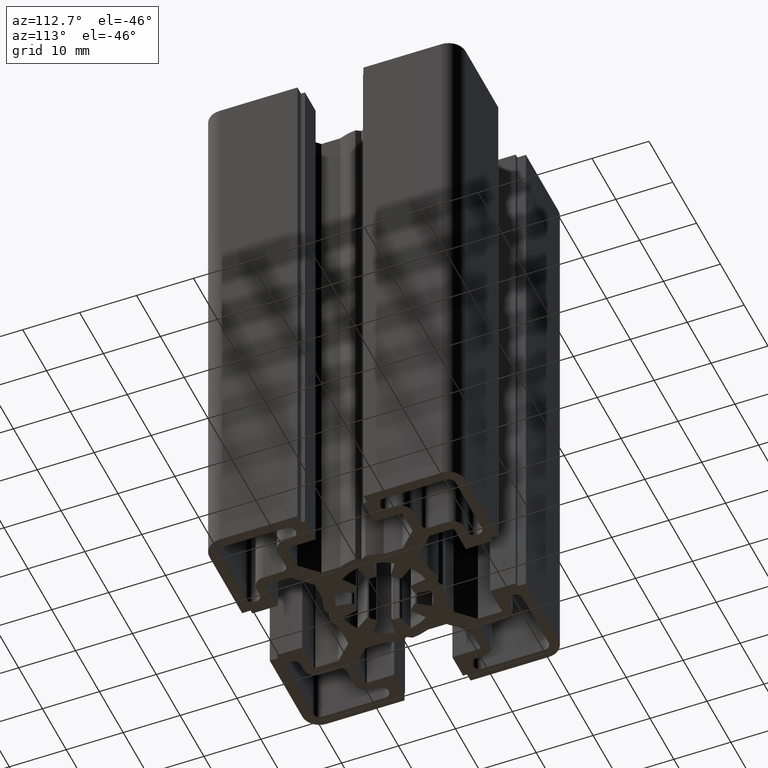
[diagram: clean part render]
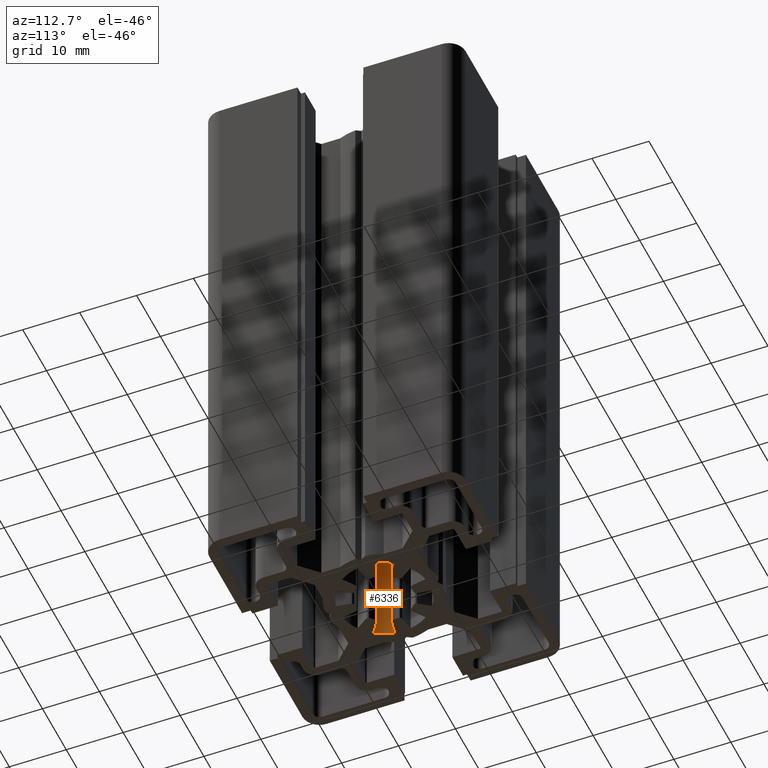
[diagram: same view with one face highlighted and labeled with its STEP entity id]
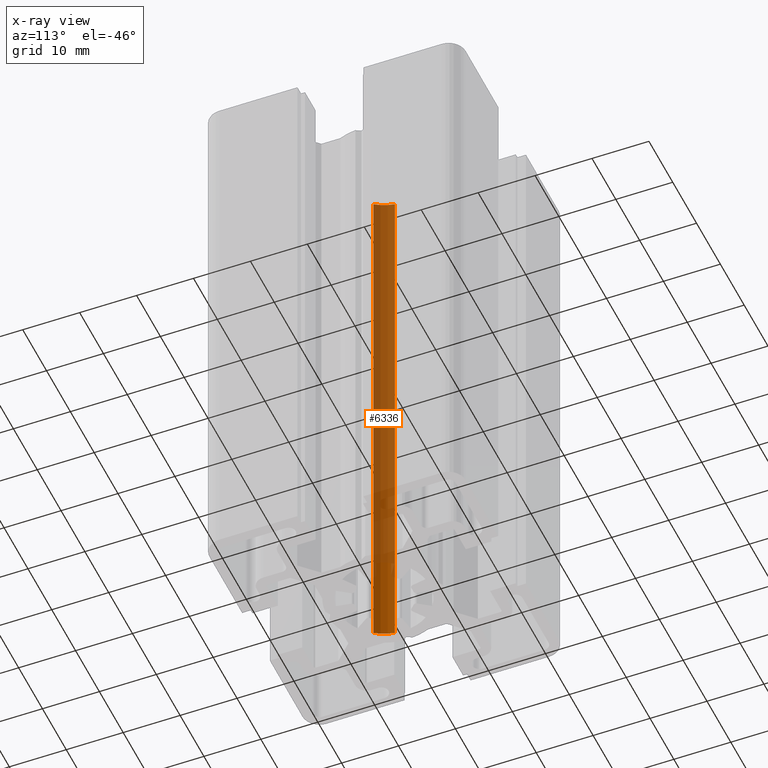
[diagram: x-ray of the same camera — body ghosted, the highlighted face saturated]
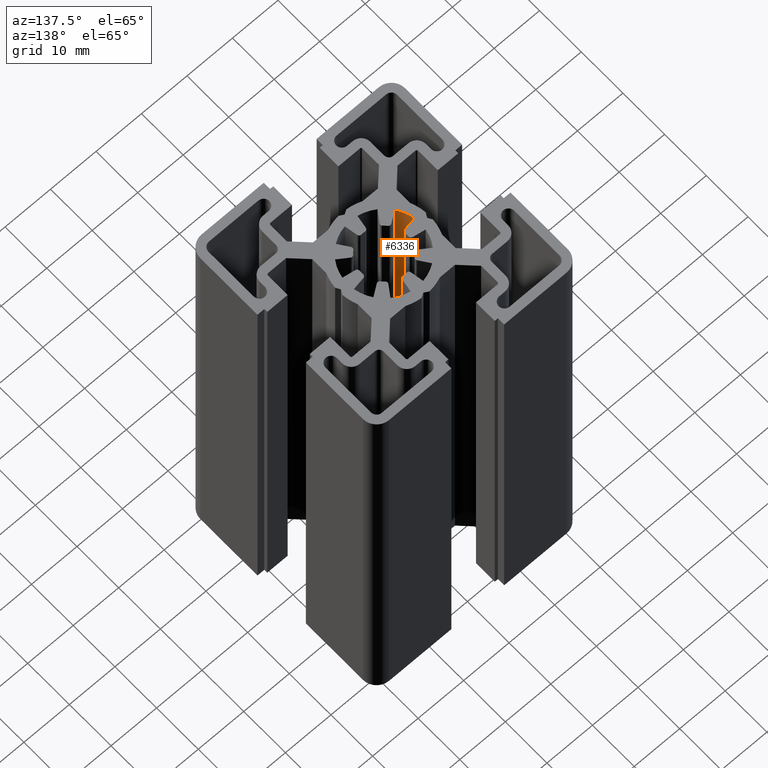
[diagram: same view with one face highlighted and labeled with its STEP entity id]
A machine part, auxiliary view. The second image highlights one B-rep face of the part: STEP entity #6336.
The next image is the same camera in x-ray: the body ghosted, the highlighted face saturated — about 85% of this face is hidden behind the body in this view.
A second angle (auxiliary view) of the same face is appended — the face is thin or edge-on in the first view.
In plain terms, the highlighted cylindrical surface (partial cylindrical patch) has radius 8 mm, axis along (-0, -0, -1).
Its self-contained STEP definition (entity closure, byte-faithful):
#1335 = VERTEX_POINT ( 'NONE', #3887 ) ;
#1382 = VERTEX_POINT ( 'NONE', #3985 ) ;
#1388 = EDGE_CURVE ( 'NONE', #1335, #1382, #3967, .T. ) ;
#1879 = EDGE_CURVE ( 'NONE', #1890, #1883, #4825, .T. ) ;
#1883 = VERTEX_POINT ( 'NONE', #4831 ) ;
#1890 = VERTEX_POINT ( 'NONE', #4856 ) ;
#3887 = CARTESIAN_POINT ( 'NONE',  ( -7.878462647182861800, -1.389185114115844200, 100.0000000000000000 ) ) ;
#3963 = DIRECTION ( 'NONE',  ( 1.000000000000000000, 0.0000000000000000000, 0.0000000000000000000 ) ) ;
#3964 = DIRECTION ( 'NONE',  ( 0.0000000000000000000, 0.0000000000000000000, 1.000000000000000000 ) ) ;
#3965 = CARTESIAN_POINT ( 'NONE',  ( 1.885706408730203300E-007, 1.069438000829425800E-006, 100.0000000000000000 ) ) ;
#3966 = AXIS2_PLACEMENT_3D ( 'NONE', #3965, #3964, #3963 ) ;
#3967 = CIRCLE ( 'NONE', #3966, 8.000000931682821600 ) ;
#3985 = CARTESIAN_POINT ( 'NONE',  ( -6.553217000000003600, -4.588612000000001200, 100.0000000000000000 ) ) ;
#4815 = DIRECTION ( 'NONE',  ( 1.000000000000000000, 0.0000000000000000000, 0.0000000000000000000 ) ) ;
#4816 = DIRECTION ( 'NONE',  ( 0.0000000000000000000, 0.0000000000000000000, 1.000000000000000000 ) ) ;
#4817 = CARTESIAN_POINT ( 'NONE',  ( 1.885706408730203300E-007, 1.069438000829425800E-006, 0.0000000000000000000 ) ) ;
#4825 = CIRCLE ( 'NONE', #4830, 8.000000931682821600 ) ;
#4830 = AXIS2_PLACEMENT_3D ( 'NONE', #4817, #4816, #4815 ) ;
#4831 = CARTESIAN_POINT ( 'NONE',  ( -6.553217000000003600, -4.588612000000001200, 0.0000000000000000000 ) ) ;
#4856 = CARTESIAN_POINT ( 'NONE',  ( -7.878462647182861800, -1.389185114115844200, 0.0000000000000000000 ) ) ;
#5584 = FACE_OUTER_BOUND ( 'NONE', #6366, .T. ) ;
#5595 = CYLINDRICAL_SURFACE ( 'NONE', #5607, 8.000000931682821600 ) ;
#5607 = AXIS2_PLACEMENT_3D ( 'NONE', #5641, #5640, #5639 ) ;
#5615 = DIRECTION ( 'NONE',  ( -0.0000000000000000000, -0.0000000000000000000, -1.000000000000000000 ) ) ;
#5616 = VECTOR ( 'NONE', #5615, 1000.000000000000000 ) ;
#5617 = CARTESIAN_POINT ( 'NONE',  ( -7.878462647182861800, -1.389185114115844200, 100.0000000000000000 ) ) ;
#5618 = LINE ( 'NONE', #5625, #5624 ) ;
#5623 = DIRECTION ( 'NONE',  ( -0.0000000000000000000, -0.0000000000000000000, -1.000000000000000000 ) ) ;
#5624 = VECTOR ( 'NONE', #5623, 1000.000000000000000 ) ;
#5625 = CARTESIAN_POINT ( 'NONE',  ( -6.553217000000003600, -4.588612000000001200, 100.0000000000000000 ) ) ;
#5639 = DIRECTION ( 'NONE',  ( -1.000000000000000000, 0.0000000000000000000, 0.0000000000000000000 ) ) ;
#5640 = DIRECTION ( 'NONE',  ( -0.0000000000000000000, -0.0000000000000000000, -1.000000000000000000 ) ) ;
#5641 = CARTESIAN_POINT ( 'NONE',  ( 1.885706408730203300E-007, 1.069438000829425800E-006, 100.0000000000000000 ) ) ;
#5645 = LINE ( 'NONE', #5617, #5616 ) ;
#6312 = ORIENTED_EDGE ( 'NONE', *, *, #6353, .F. ) ;
#6336 = ADVANCED_FACE ( 'NONE', ( #5584 ), #5595, .F. ) ;
#6339 = ORIENTED_EDGE ( 'NONE', *, *, #1388, .T. ) ;
#6352 = ORIENTED_EDGE ( 'NONE', *, *, #6356, .T. ) ;
#6353 = EDGE_CURVE ( 'NONE', #1335, #1890, #5645, .T. ) ;
#6354 = ORIENTED_EDGE ( 'NONE', *, *, #1879, .F. ) ;
#6356 = EDGE_CURVE ( 'NONE', #1382, #1883, #5618, .T. ) ;
#6366 = EDGE_LOOP ( 'NONE', ( #6354, #6312, #6339, #6352 ) ) ;